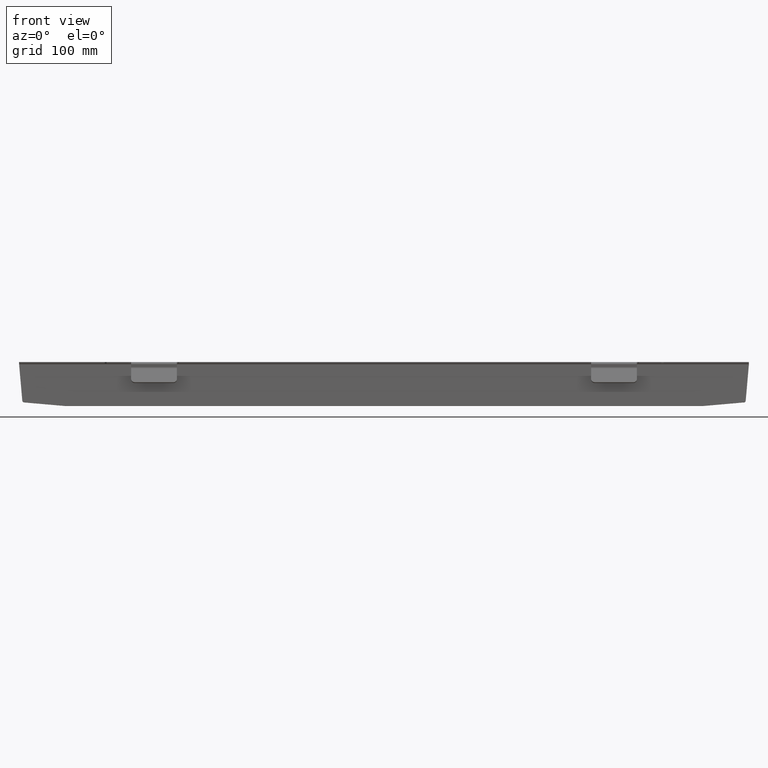
[diagram: clean part render]
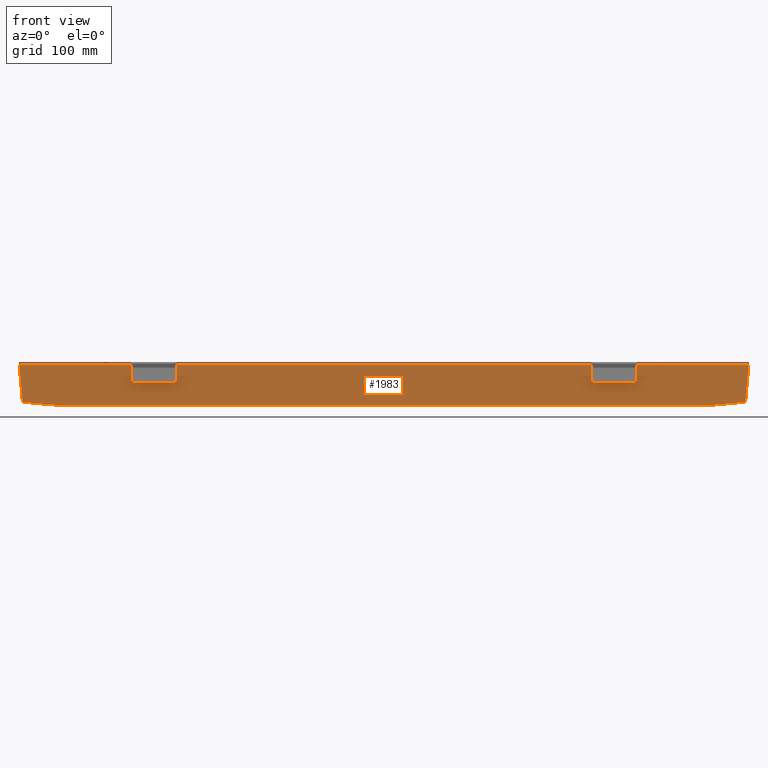
[diagram: same view with one face highlighted and labeled with its STEP entity id]
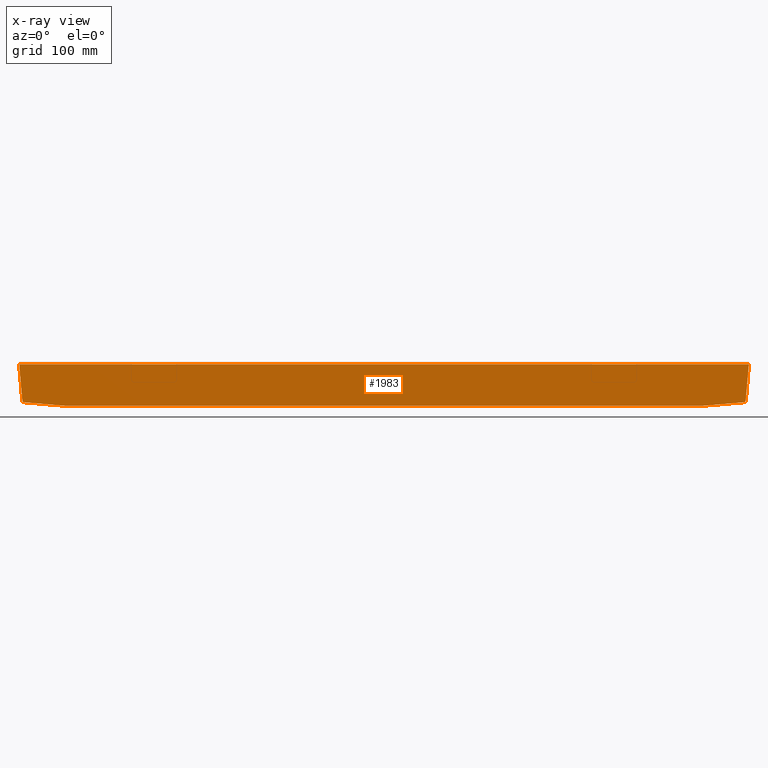
[diagram: x-ray of the same camera — body ghosted, the highlighted face saturated]
A machine part, front view. The second image highlights one B-rep face of the part: STEP entity #1983.
The next image is the same camera in x-ray: the body ghosted, the highlighted face saturated — about 0% of this face is hidden behind the body in this view.
In plain terms, the highlighted planar face has unit normal (0, -0.9962, 0.0872).
Its self-contained STEP definition (entity closure, byte-faithful):
#12 = CARTESIAN_POINT ( 'NONE',  ( -399.0000000000000000, 16.59086483851042000, -2.587155742747654600 ) ) ;
#35 = VERTEX_POINT ( 'NONE', #2483 ) ;
#87 = EDGE_CURVE ( 'NONE', #908, #1424, #2380, .T. ) ;
#102 = DIRECTION ( 'NONE',  ( 0.9961946980917455500, -0.007596123493895710600, -0.08682408883346555400 ) ) ;
#124 = CARTESIAN_POINT ( 'NONE',  ( -393.5273355201495100, 13.13902549924846100, -42.04185993124253400 ) ) ;
#128 = ORIENTED_EDGE ( 'NONE', *, *, #380, .T. ) ;
#203 = CARTESIAN_POINT ( 'NONE',  ( 395.5197249163329000, 13.12383325226066900, -42.21550810890946800 ) ) ;
#212 = ORIENTED_EDGE ( 'NONE', *, *, #2352, .T. ) ;
#216 = FACE_OUTER_BOUND ( 'NONE', #1791, .T. ) ;
#266 = AXIS2_PLACEMENT_3D ( 'NONE', #1894, #2074, #758 ) ;
#380 = EDGE_CURVE ( 'NONE', #2001, #1158, #642, .T. ) ;
#407 = LINE ( 'NONE', #419, #2163 ) ;
#419 = CARTESIAN_POINT ( 'NONE',  ( -399.0000000000000000, 12.62452102944722700, -47.92267293107536100 ) ) ;
#452 = ORIENTED_EDGE ( 'NONE', *, *, #2046, .T. ) ;
#521 = ORIENTED_EDGE ( 'NONE', *, *, #2793, .F. ) ;
#533 = PLANE ( 'NONE',  #1393 ) ;
#547 = VERTEX_POINT ( 'NONE', #1273 ) ;
#556 = CARTESIAN_POINT ( 'NONE',  ( 0.0000000000000000000, 16.69775573450495200, -1.365387210841089200 ) ) ;
#579 = CARTESIAN_POINT ( 'NONE',  ( -393.7016470056448700, 12.96537732158153800, -44.02666768425474700 ) ) ;
#601 = VERTEX_POINT ( 'NONE', #203 ) ;
#618 = DIRECTION ( 'NONE',  ( 0.0000000000000000000, -0.9961946980917458800, 0.08715574274765483500 ) ) ;
#622 = LINE ( 'NONE', #12, #1571 ) ;
#637 = VERTEX_POINT ( 'NONE', #651 ) ;
#642 = CIRCLE ( 'NONE', #2764, 2.000000000000001300 ) ;
#651 = CARTESIAN_POINT ( 'NONE',  ( 399.0000000000001700, 16.59086483851042400, -2.587155742747616800 ) ) ;
#694 = ORIENTED_EDGE ( 'NONE', *, *, #87, .F. ) ;
#752 = VECTOR ( 'NONE', #2521, 1000.000000000000200 ) ;
#758 = DIRECTION ( 'NONE',  ( 0.0000000000000000000, -0.08715574274765521000, -0.9961946980917457700 ) ) ;
#785 = DIRECTION ( 'NONE',  ( 0.0000000000000000000, -0.08715574274765483500, -0.9961946980917457700 ) ) ;
#795 = CARTESIAN_POINT ( 'NONE',  ( -348.9126781141831100, 12.79883251494253600, -45.93028353489187100 ) ) ;
#799 = CARTESIAN_POINT ( 'NONE',  ( 349.0869895996781900, 12.62518433727561100, -47.91509128790409000 ) ) ;
#908 = VERTEX_POINT ( 'NONE', #1846 ) ;
#1016 = DIRECTION ( 'NONE',  ( 0.0000000000000000000, -0.08715574274765521000, -0.9961946980917457700 ) ) ;
#1042 = CARTESIAN_POINT ( 'NONE',  ( -399.0000000000000000, 16.59086483851041300, -2.587155742747730100 ) ) ;
#1076 = DIRECTION ( 'NONE',  ( 1.000000000000000000, 2.281411774320430800E-018, 2.607665590461909200E-017 ) ) ;
#1158 = VERTEX_POINT ( 'NONE', #579 ) ;
#1165 = CARTESIAN_POINT ( 'NONE',  ( -6.708781916631687100, 10.01450275850297100, -77.75531827913211200 ) ) ;
#1181 = ORIENTED_EDGE ( 'NONE', *, *, #1753, .T. ) ;
#1193 = AXIS2_PLACEMENT_3D ( 'NONE', #1689, #618, #2355 ) ;
#1247 = VECTOR ( 'NONE', #102, 1000.000000000000000 ) ;
#1253 = DIRECTION ( 'NONE',  ( 0.0000000000000000000, -0.9961946980917458800, 0.08715574274765484900 ) ) ;
#1273 = CARTESIAN_POINT ( 'NONE',  ( -349.0869895996783600, 12.62518433727561500, -47.91509128790408300 ) ) ;
#1292 = VECTOR ( 'NONE', #1640, 1000.000000000000000 ) ;
#1393 = AXIS2_PLACEMENT_3D ( 'NONE', #556, #1253, #785 ) ;
#1415 = ORIENTED_EDGE ( 'NONE', *, *, #1719, .F. ) ;
#1424 = VERTEX_POINT ( 'NONE', #799 ) ;
#1472 = DIRECTION ( 'NONE',  ( 0.08715574274765869300, -0.08682408883346183500, -0.9924038765061041800 ) ) ;
#1512 = CIRCLE ( 'NONE', #1193, 2.000000000000001300 ) ;
#1571 = VECTOR ( 'NONE', #1076, 1000.000000000000000 ) ;
#1576 = CIRCLE ( 'NONE', #2424, 2.000000000000001300 ) ;
#1640 = DIRECTION ( 'NONE',  ( -0.9961946980917455500, -0.007596123493895708800, -0.08682408883346554000 ) ) ;
#1668 = DIRECTION ( 'NONE',  ( 0.0000000000000000000, -0.9961946980917458800, 0.08715574274765483500 ) ) ;
#1689 = CARTESIAN_POINT ( 'NONE',  ( 348.9126781141829400, 12.79883251494253600, -45.93028353489187100 ) ) ;
#1695 = ORIENTED_EDGE ( 'NONE', *, *, #2739, .F. ) ;
#1719 = EDGE_CURVE ( 'NONE', #637, #601, #1990, .T. ) ;
#1753 = EDGE_CURVE ( 'NONE', #35, #1424, #1512, .T. ) ;
#1759 = VERTEX_POINT ( 'NONE', #1042 ) ;
#1791 = EDGE_LOOP ( 'NONE', ( #452, #128, #212, #2763, #1695, #1181, #694, #2172, #1415, #521 ) ) ;
#1846 = CARTESIAN_POINT ( 'NONE',  ( 393.7016470056448200, 12.96537732158153800, -44.02666768425474700 ) ) ;
#1849 = DIRECTION ( 'NONE',  ( 0.0000000000000000000, -0.08715574274765521000, -0.9961946980917457700 ) ) ;
#1894 = CARTESIAN_POINT ( 'NONE',  ( 393.5273355201494500, 13.13902549924846100, -42.04185993124253400 ) ) ;
#1966 = EDGE_CURVE ( 'NONE', #908, #601, #2583, .T. ) ;
#1983 = ADVANCED_FACE ( 'NONE', ( #216 ), #533, .T. ) ;
#1989 = EDGE_CURVE ( 'NONE', #547, #2012, #1576, .T. ) ;
#1990 = LINE ( 'NONE', #2282, #752 ) ;
#2001 = VERTEX_POINT ( 'NONE', #2545 ) ;
#2012 = VERTEX_POINT ( 'NONE', #2115 ) ;
#2046 = EDGE_CURVE ( 'NONE', #1759, #2001, #2746, .T. ) ;
#2074 = DIRECTION ( 'NONE',  ( 0.0000000000000000000, -0.9961946980917458800, 0.08715574274765483500 ) ) ;
#2115 = CARTESIAN_POINT ( 'NONE',  ( -348.9126781141831100, 12.62452102944722700, -47.92267293107536100 ) ) ;
#2163 = VECTOR ( 'NONE', #2372, 1000.000000000000000 ) ;
#2167 = VECTOR ( 'NONE', #1472, 1000.000000000000100 ) ;
#2172 = ORIENTED_EDGE ( 'NONE', *, *, #1966, .T. ) ;
#2282 = CARTESIAN_POINT ( 'NONE',  ( 396.0756308697994500, 13.67762381574164700, -35.88565300354596800 ) ) ;
#2306 = DIRECTION ( 'NONE',  ( 0.0000000000000000000, -0.9961946980917458800, 0.08715574274765483500 ) ) ;
#2352 = EDGE_CURVE ( 'NONE', #1158, #547, #2500, .T. ) ;
#2355 = DIRECTION ( 'NONE',  ( 0.0000000000000000000, -0.08715574274765521000, -0.9961946980917457700 ) ) ;
#2372 = DIRECTION ( 'NONE',  ( -1.000000000000000000, -0.0000000000000000000, -0.0000000000000000000 ) ) ;
#2380 = LINE ( 'NONE', #2510, #1292 ) ;
#2424 = AXIS2_PLACEMENT_3D ( 'NONE', #795, #2306, #1016 ) ;
#2483 = CARTESIAN_POINT ( 'NONE',  ( 348.9126781141829400, 12.62452102944722700, -47.92267293107536100 ) ) ;
#2500 = LINE ( 'NONE', #1165, #1247 ) ;
#2510 = CARTESIAN_POINT ( 'NONE',  ( 6.708781916631685300, 10.01450275850297100, -77.75531827913209800 ) ) ;
#2521 = DIRECTION ( 'NONE',  ( -0.08715574274765869300, -0.08682408883346182100, -0.9924038765061041800 ) ) ;
#2545 = CARTESIAN_POINT ( 'NONE',  ( -395.5197249163329600, 13.12383325226066900, -42.21550810890946100 ) ) ;
#2583 = CIRCLE ( 'NONE', #266, 2.000000000000001300 ) ;
#2591 = CARTESIAN_POINT ( 'NONE',  ( -396.0756308697995100, 13.67762381574164500, -35.88565300354598300 ) ) ;
#2739 = EDGE_CURVE ( 'NONE', #35, #2012, #407, .T. ) ;
#2746 = LINE ( 'NONE', #2591, #2167 ) ;
#2763 = ORIENTED_EDGE ( 'NONE', *, *, #1989, .T. ) ;
#2764 = AXIS2_PLACEMENT_3D ( 'NONE', #124, #1668, #1849 ) ;
#2793 = EDGE_CURVE ( 'NONE', #1759, #637, #622, .T. ) ;